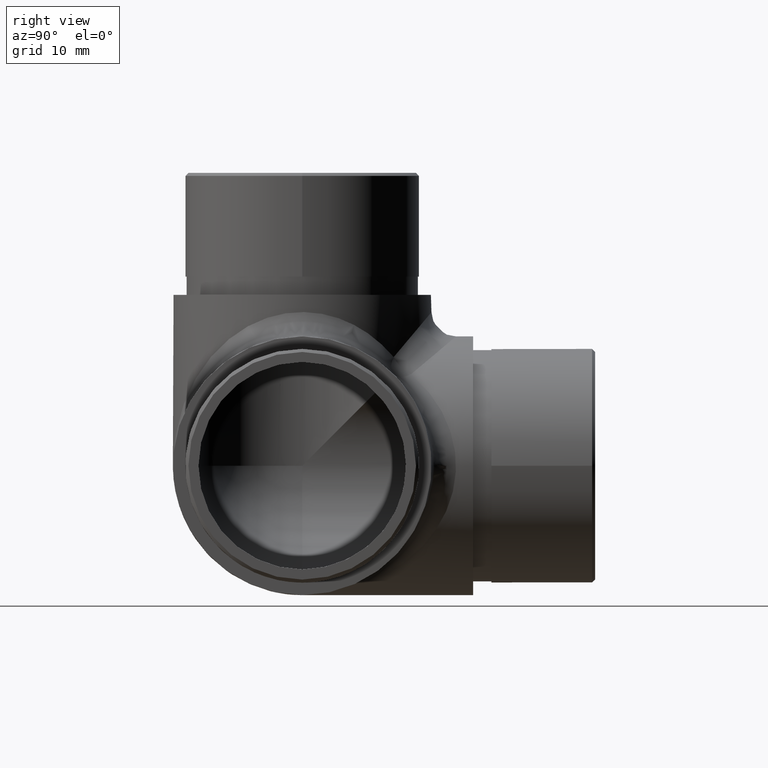
[diagram: clean part render]
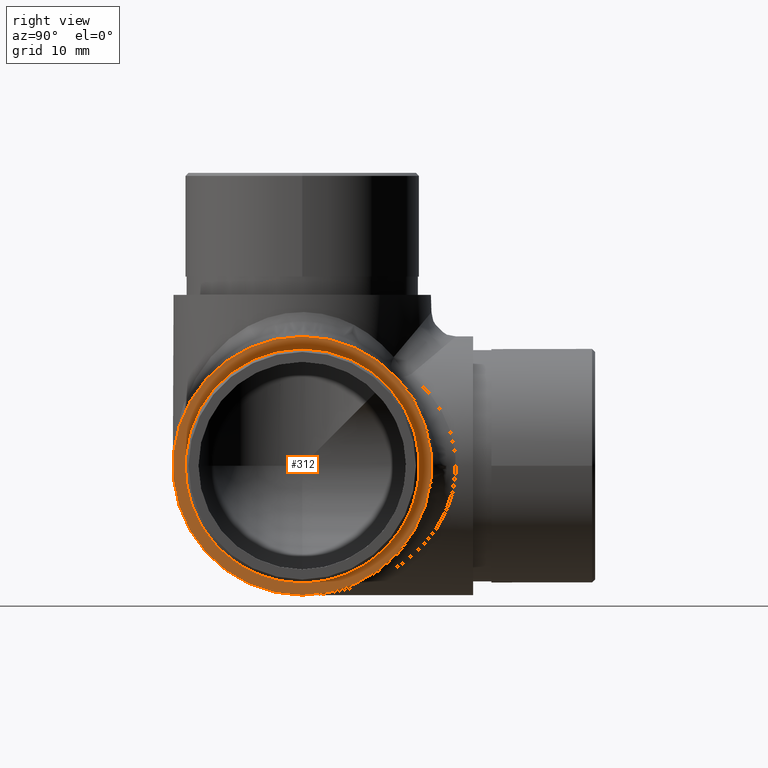
[diagram: same view with one face highlighted and labeled with its STEP entity id]
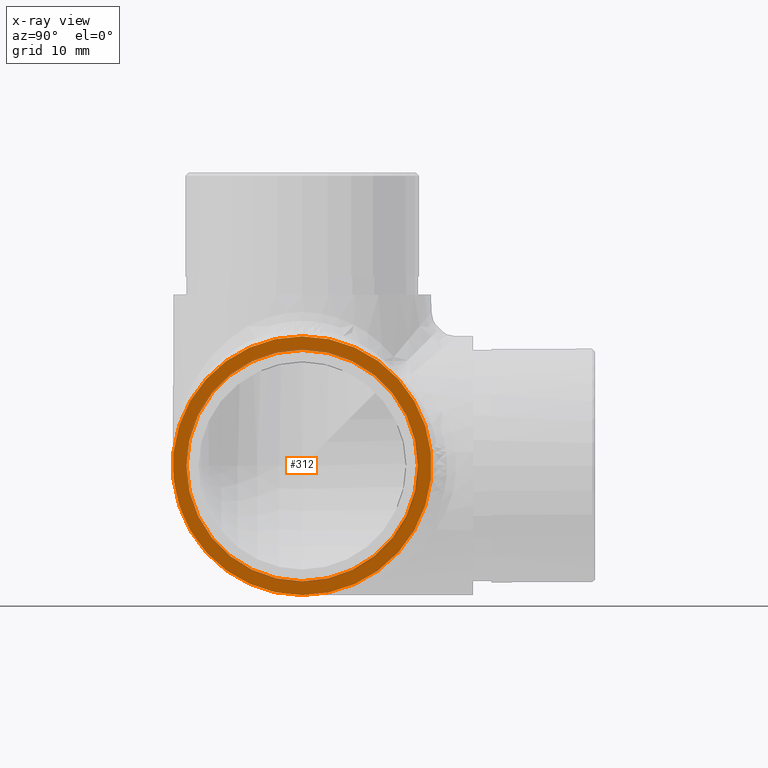
[diagram: x-ray of the same camera — body ghosted, the highlighted face saturated]
A machine part, right view. The second image highlights one B-rep face of the part: STEP entity #312.
The next image is the same camera in x-ray: the body ghosted, the highlighted face saturated — about 10% of this face is hidden behind the body in this view.
In plain terms, the highlighted planar face has unit normal (1, 0, 0).
Its self-contained STEP definition (entity closure, byte-faithful):
#268 = DIRECTION ( 'NONE',  ( 0.0000000000000000000, 0.0000000000000000000, -1.000000000000000000 ) ) ;
#312 = ADVANCED_FACE ( 'NONE', ( #8484, #10037 ), #8820, .T. ) ;
#553 = DIRECTION ( 'NONE',  ( 1.000000000000000000, 0.0000000000000000000, 0.0000000000000000000 ) ) ;
#563 = DIRECTION ( 'NONE',  ( 1.000000000000000000, 0.0000000000000000000, 0.0000000000000000000 ) ) ;
#774 = DIRECTION ( 'NONE',  ( 0.0000000000000000000, 0.0000000000000000000, -1.000000000000000000 ) ) ;
#1330 = ORIENTED_EDGE ( 'NONE', *, *, #12667, .F. ) ;
#1605 = VERTEX_POINT ( 'NONE', #10803 ) ;
#2221 = AXIS2_PLACEMENT_3D ( 'NONE', #2814, #563, #774 ) ;
#2548 = CARTESIAN_POINT ( 'NONE',  ( 27.99999999999999600, 21.19999999999999900, 21.20000000000000300 ) ) ;
#2814 = CARTESIAN_POINT ( 'NONE',  ( 27.99999999999999600, 21.19999999999999900, 21.20000000000000300 ) ) ;
#3011 = EDGE_LOOP ( 'NONE', ( #12473 ) ) ;
#4217 = DIRECTION ( 'NONE',  ( 1.000000000000000000, 0.0000000000000000000, 0.0000000000000000000 ) ) ;
#5776 = AXIS2_PLACEMENT_3D ( 'NONE', #2548, #553, #6663 ) ;
#6663 = DIRECTION ( 'NONE',  ( 0.0000000000000000000, 0.0000000000000000000, -1.000000000000000000 ) ) ;
#7891 = CARTESIAN_POINT ( 'NONE',  ( 27.99999999999999600, 21.19999999999999900, 3.469446951953614200E-015 ) ) ;
#8212 = AXIS2_PLACEMENT_3D ( 'NONE', #8252, #4217, #268 ) ;
#8252 = CARTESIAN_POINT ( 'NONE',  ( 27.99999999999999600, 21.19999999999999900, 21.19999999999998200 ) ) ;
#8346 = CIRCLE ( 'NONE', #5776, 21.19999999999999900 ) ;
#8484 = FACE_BOUND ( 'NONE', #10082, .T. ) ;
#8820 = PLANE ( 'NONE',  #2221 ) ;
#9122 = VERTEX_POINT ( 'NONE', #7891 ) ;
#10037 = FACE_OUTER_BOUND ( 'NONE', #3011, .T. ) ;
#10082 = EDGE_LOOP ( 'NONE', ( #1330 ) ) ;
#10803 = CARTESIAN_POINT ( 'NONE',  ( 27.99999999999999600, 21.19999999999999900, 2.249999999999981300 ) ) ;
#10974 = CIRCLE ( 'NONE', #8212, 18.95000000000000300 ) ;
#12473 = ORIENTED_EDGE ( 'NONE', *, *, #12890, .T. ) ;
#12667 = EDGE_CURVE ( 'NONE', #1605, #1605, #10974, .T. ) ;
#12890 = EDGE_CURVE ( 'NONE', #9122, #9122, #8346, .T. ) ;